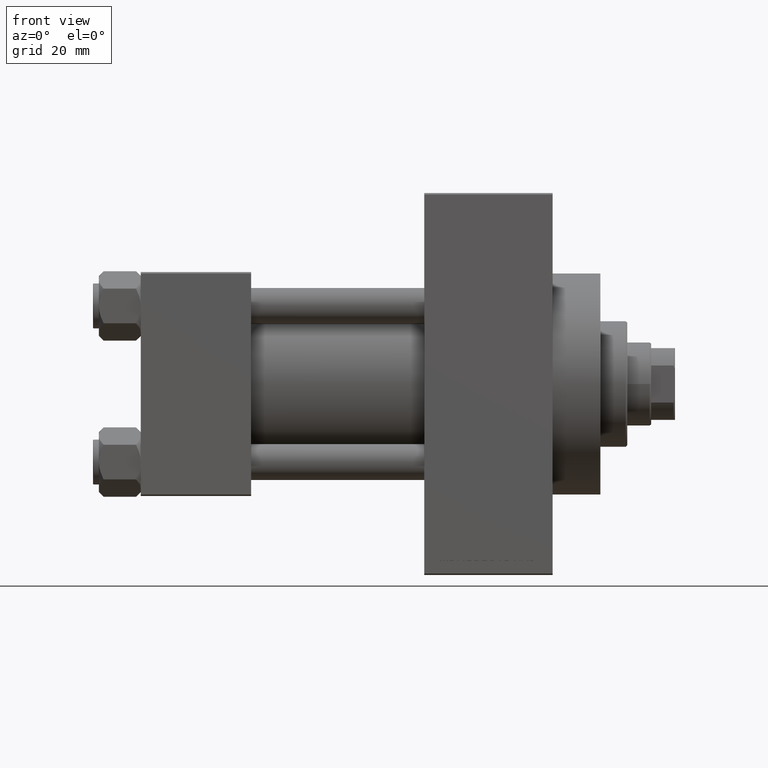
[diagram: clean part render]
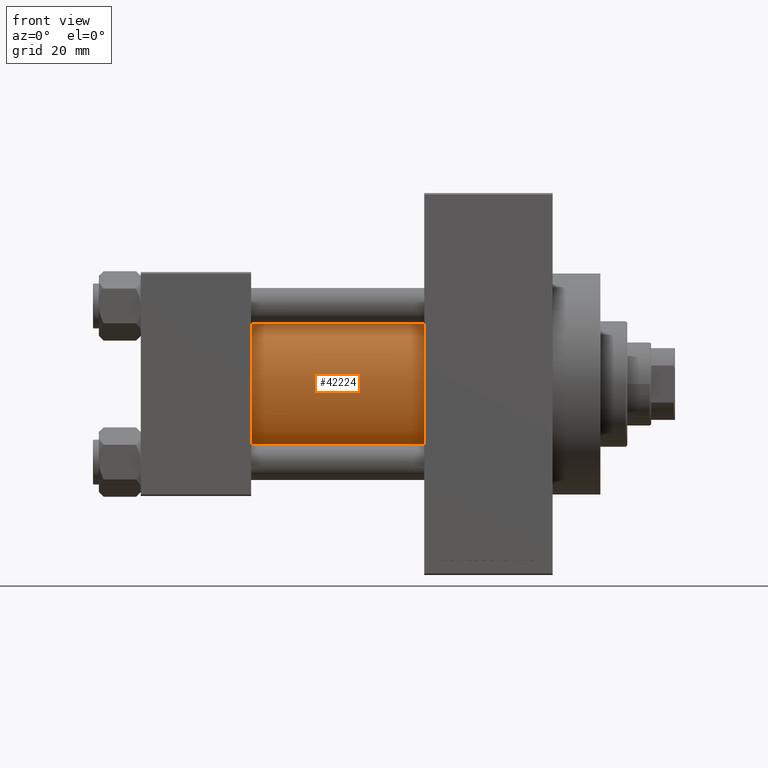
[diagram: same view with one face highlighted and labeled with its STEP entity id]
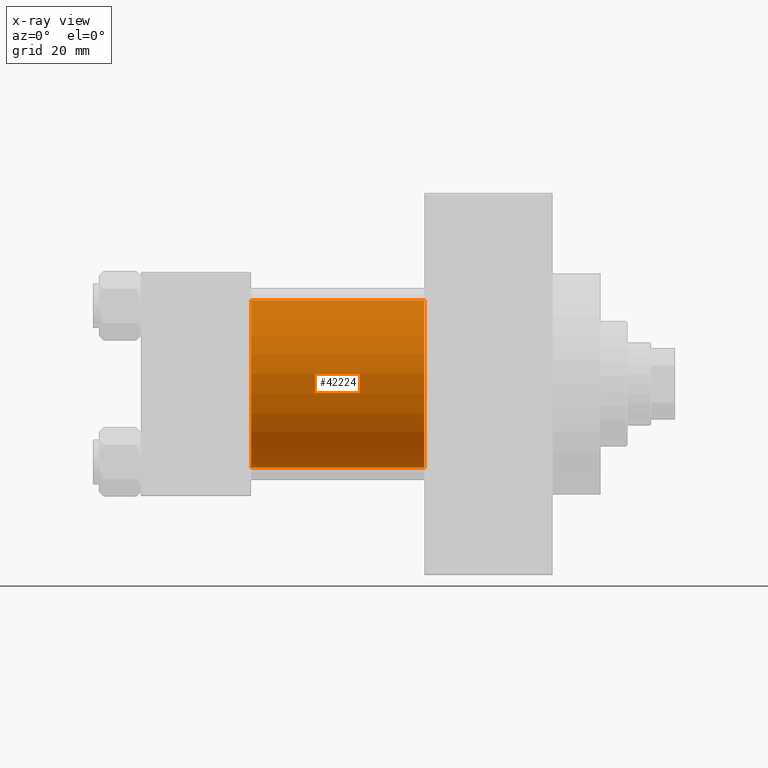
[diagram: x-ray of the same camera — body ghosted, the highlighted face saturated]
A machine part, front view. The second image highlights one B-rep face of the part: STEP entity #42224.
The next image is the same camera in x-ray: the body ghosted, the highlighted face saturated — about 2% of this face is hidden behind the body in this view.
In plain terms, the highlighted cylindrical surface (partial cylindrical patch) has radius 28 mm, axis along (-1, -0, -0).
Its self-contained STEP definition (entity closure, byte-faithful):
#961 = DIRECTION ( 'NONE',  ( -1.000000000000000000, -0.000000000000000000, -0.000000000000000000 ) ) ;
#3039 = DIRECTION ( 'NONE',  ( -1.000000000000000000, -0.000000000000000000, -0.000000000000000000 ) ) ;
#3983 = DIRECTION ( 'NONE',  ( 1.000000000000000000, 0.000000000000000000, 0.000000000000000000 ) ) ;
#5670 = VERTEX_POINT ( 'NONE', #20332 ) ;
#7090 = CARTESIAN_POINT ( 'NONE',  ( 95.00000000000000000, -2.602085213965210642E-15, 0.000000000000000000 ) ) ;
#7281 = AXIS2_PLACEMENT_3D ( 'NONE', #18773, #40940, #22814 ) ;
#7905 = CARTESIAN_POINT ( 'NONE',  ( 95.00000000000000000, -2.602085213965210642E-15, 28.00000000000000000 ) ) ;
#8418 = VECTOR ( 'NONE', #961, 1000.000000000000000 ) ;
#11347 = ORIENTED_EDGE ( 'NONE', *, *, #12560, .F. ) ;
#12560 = EDGE_CURVE ( 'NONE', #45505, #14077, #20628, .T. ) ;
#14035 = FACE_OUTER_BOUND ( 'NONE', #30224, .T. ) ;
#14077 = VERTEX_POINT ( 'NONE', #41381 ) ;
#18773 = CARTESIAN_POINT ( 'NONE',  ( 37.00000000000000000, -2.602085213965210642E-15, 0.000000000000000000 ) ) ;
#19995 = VECTOR ( 'NONE', #35176, 1000.000000000000000 ) ;
#20332 = CARTESIAN_POINT ( 'NONE',  ( 95.00000000000000000, -2.602085213965210642E-15, 28.00000000000000000 ) ) ;
#20628 = LINE ( 'NONE', #34946, #19995 ) ;
#20642 = ORIENTED_EDGE ( 'NONE', *, *, #44236, .T. ) ;
#22814 = DIRECTION ( 'NONE',  ( 0.000000000000000000, 0.000000000000000000, 1.000000000000000000 ) ) ;
#23820 = CARTESIAN_POINT ( 'NONE',  ( 95.00000000000000000, 8.269258236473776482E-16, -28.00000000000000000 ) ) ;
#25259 = DIRECTION ( 'NONE',  ( 0.000000000000000000, 0.000000000000000000, 1.000000000000000000 ) ) ;
#26981 = LINE ( 'NONE', #7905, #8418 ) ;
#27870 = CYLINDRICAL_SURFACE ( 'NONE', #44930, 28.00000000000000000 ) ;
#28602 = CARTESIAN_POINT ( 'NONE',  ( 95.00000000000000000, -2.602085213965210642E-15, 0.000000000000000000 ) ) ;
#28641 = EDGE_CURVE ( 'NONE', #35567, #14077, #31669, .T. ) ;
#30224 = EDGE_LOOP ( 'NONE', ( #11347, #34419, #20642, #35937 ) ) ;
#31669 = CIRCLE ( 'NONE', #7281, 28.00000000000000000 ) ;
#33572 = DIRECTION ( 'NONE',  ( 0.000000000000000000, 0.000000000000000000, -1.000000000000000000 ) ) ;
#34419 = ORIENTED_EDGE ( 'NONE', *, *, #36516, .F. ) ;
#34946 = CARTESIAN_POINT ( 'NONE',  ( 95.00000000000000000, 8.269258236473776482E-16, -28.00000000000000000 ) ) ;
#35176 = DIRECTION ( 'NONE',  ( -1.000000000000000000, -0.000000000000000000, -0.000000000000000000 ) ) ;
#35567 = VERTEX_POINT ( 'NONE', #39060 ) ;
#35937 = ORIENTED_EDGE ( 'NONE', *, *, #28641, .T. ) ;
#36516 = EDGE_CURVE ( 'NONE', #5670, #45505, #47073, .T. ) ;
#39060 = CARTESIAN_POINT ( 'NONE',  ( 37.00000000000000000, -2.602085213965210642E-15, 28.00000000000000000 ) ) ;
#39429 = AXIS2_PLACEMENT_3D ( 'NONE', #7090, #3983, #33572 ) ;
#40940 = DIRECTION ( 'NONE',  ( 1.000000000000000000, -0.000000000000000000, 0.000000000000000000 ) ) ;
#41381 = CARTESIAN_POINT ( 'NONE',  ( 37.00000000000000000, 8.269258236473776482E-16, -28.00000000000000000 ) ) ;
#42224 = ADVANCED_FACE ( 'NONE', ( #14035 ), #27870, .T. ) ;
#44236 = EDGE_CURVE ( 'NONE', #5670, #35567, #26981, .T. ) ;
#44930 = AXIS2_PLACEMENT_3D ( 'NONE', #28602, #3039, #25259 ) ;
#45505 = VERTEX_POINT ( 'NONE', #23820 ) ;
#47073 = CIRCLE ( 'NONE', #39429, 28.00000000000000000 ) ;